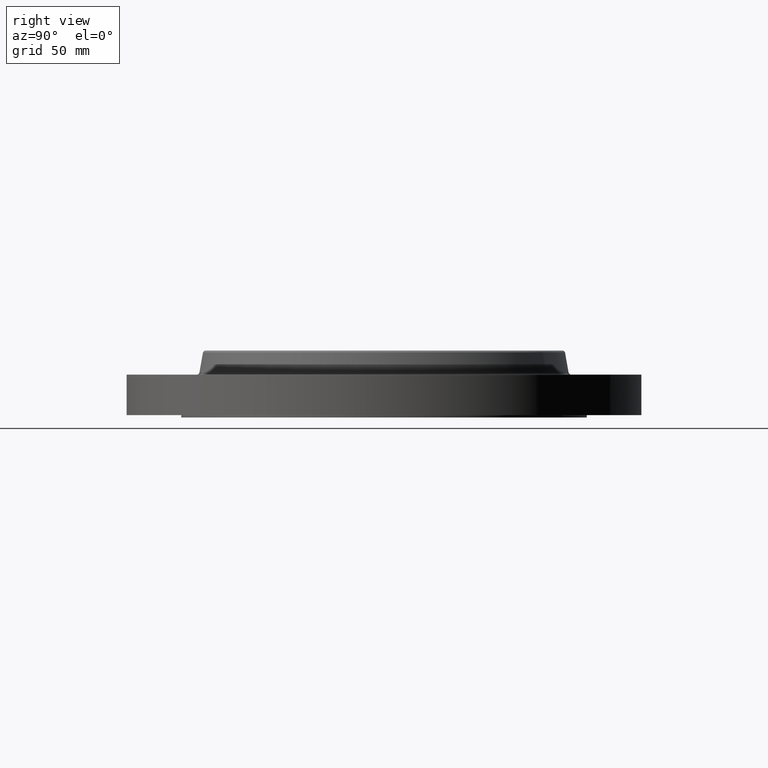
[diagram: clean part render]
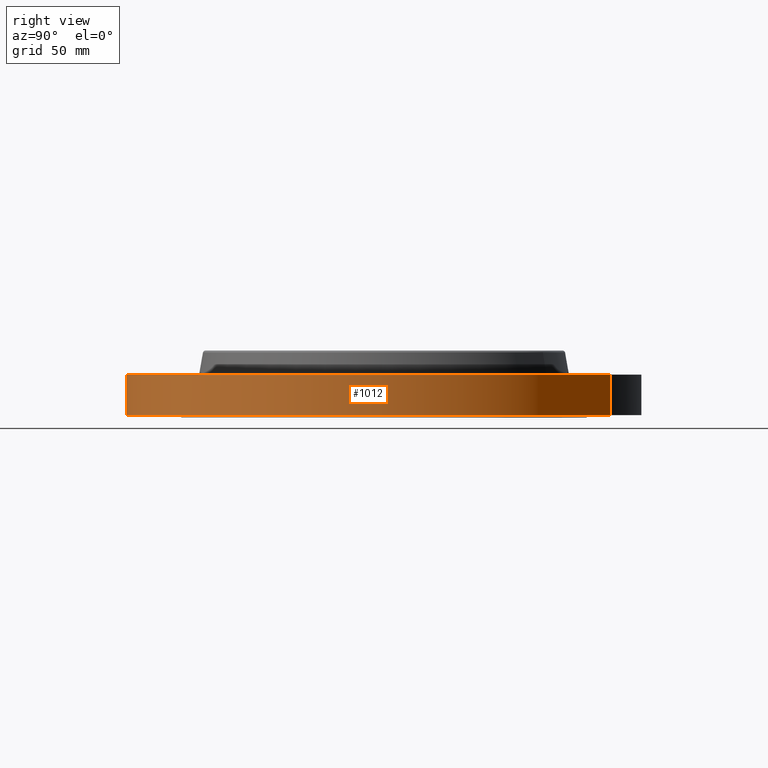
[diagram: same view with one face highlighted and labeled with its STEP entity id]
A machine part, right view. The second image highlights one B-rep face of the part: STEP entity #1012.
In plain terms, the highlighted cylindrical surface (partial cylindrical patch) has radius 171.45 mm, axis along (0, 0, -1).
Its self-contained STEP definition (entity closure, byte-faithful):
#752=AXIS2_PLACEMENT_3D('Circle Axis2P3D',#750,#751,$) ;
#985=AXIS2_PLACEMENT_3D('Cylinder Axis2P3D',#982,#983,#984) ;
#996=AXIS2_PLACEMENT_3D('Circle Axis2P3D',#994,#995,$) ;
#745=CARTESIAN_POINT('Vertex',(-3.23612238559,-5.92368229278,8.39223703654E-016)) ;
#747=CARTESIAN_POINT('Vertex',(3.23612238559,5.92368229278,8.39223703654E-016)) ;
#750=CARTESIAN_POINT('Axis2P3D Location',(0.,0.,0.)) ;
#982=CARTESIAN_POINT('Axis2P3D Location',(0.,0.,0.813750000003)) ;
#987=CARTESIAN_POINT('Line Origine',(3.23612238559,5.92368229278,0.530000000002)) ;
#991=CARTESIAN_POINT('Vertex',(3.23612238559,5.92368229278,1.06)) ;
#994=CARTESIAN_POINT('Axis2P3D Location',(0.,0.,1.06)) ;
#998=CARTESIAN_POINT('Vertex',(-3.23612238559,-5.92368229278,1.06)) ;
#1001=CARTESIAN_POINT('Line Origine',(-3.23612238559,-5.92368229278,0.530000000002)) ;
#751=DIRECTION('Axis2P3D Direction',(0.,0.,-0.0393700787402)) ;
#983=DIRECTION('Axis2P3D Direction',(0.,0.,-0.0393700787402)) ;
#984=DIRECTION('Axis2P3D XDirection',(-0.0188750212049,-0.0345504945626,0.)) ;
#988=DIRECTION('Vector Direction',(0.,0.,-0.0393700787402)) ;
#995=DIRECTION('Axis2P3D Direction',(0.,0.,-0.0393700787402)) ;
#1002=DIRECTION('Vector Direction',(0.,0.,-0.0393700787402)) ;
#989=VECTOR('Line Direction',#988,0.0393700787402) ;
#1003=VECTOR('Line Direction',#1002,0.0393700787402) ;
#1007=ORIENTED_EDGE('',*,*,#754,.F.) ;
#1008=ORIENTED_EDGE('',*,*,#993,.T.) ;
#1009=ORIENTED_EDGE('',*,*,#1000,.T.) ;
#1010=ORIENTED_EDGE('',*,*,#1005,.F.) ;
#1012=ADVANCED_FACE('PartBody',(#1011),#986,.T.) ;
#753=CIRCLE('generated circle',#752,6.75000000003) ;
#997=CIRCLE('generated circle',#996,6.75000000003) ;
#986=CYLINDRICAL_SURFACE('generated cylinder',#985,6.75000000003) ;
#754=EDGE_CURVE('',#748,#746,#753,.T.) ;
#993=EDGE_CURVE('',#748,#992,#990,.F.) ;
#1000=EDGE_CURVE('',#992,#999,#997,.T.) ;
#1005=EDGE_CURVE('',#746,#999,#1004,.F.) ;
#1006=EDGE_LOOP('',(#1007,#1008,#1009,#1010)) ;
#1011=FACE_OUTER_BOUND('',#1006,.T.) ;
#990=LINE('Line',#987,#989) ;
#1004=LINE('Line',#1001,#1003) ;
#746=VERTEX_POINT('',#745) ;
#748=VERTEX_POINT('',#747) ;
#992=VERTEX_POINT('',#991) ;
#999=VERTEX_POINT('',#998) ;